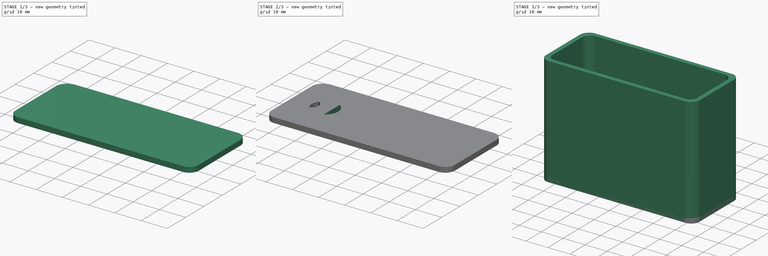
[diagram: build sequence overview — one tinted view per stage of 3, left to right]
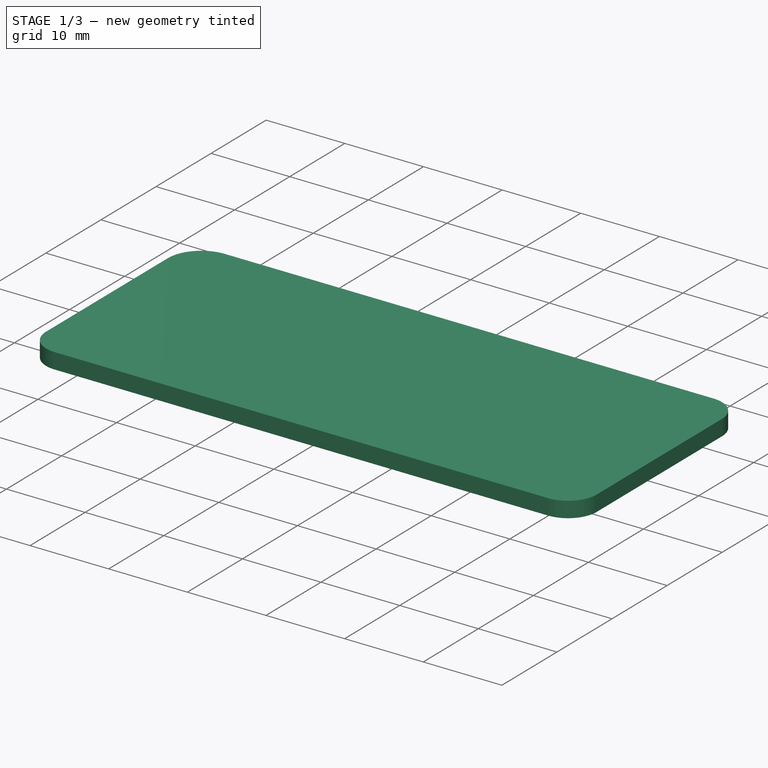
[diagram: stage 1 of 3 — iso view after this stage's code; geometry added in this stage tinted green]
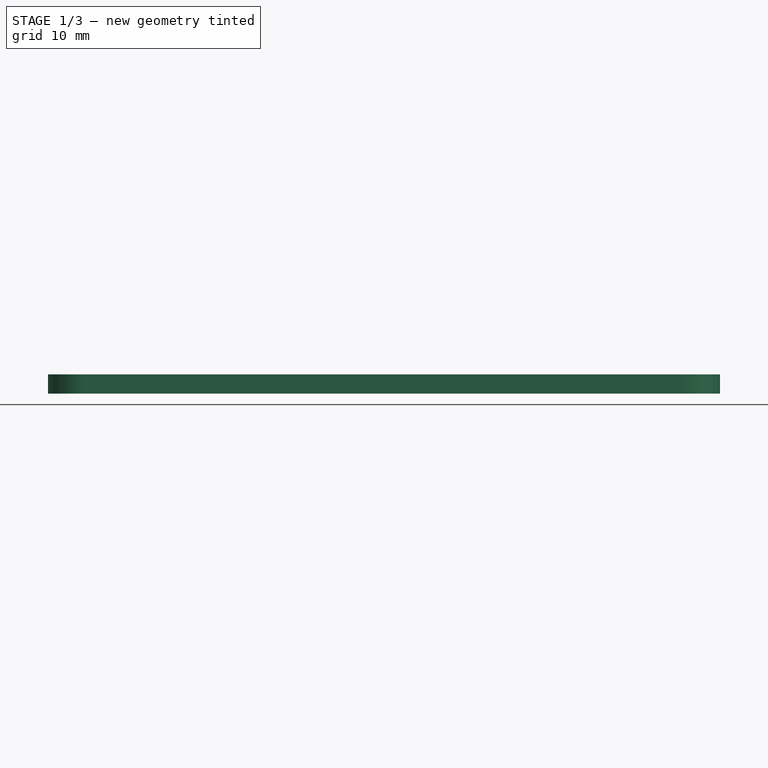
[diagram: stage 1 of 3 — front view after this stage's code; geometry added in this stage tinted green]
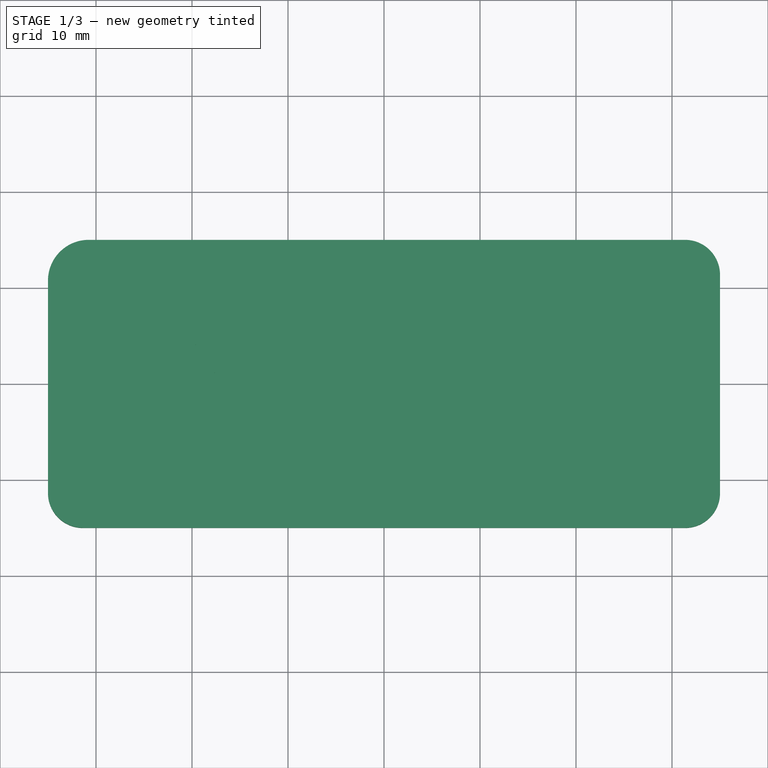
[diagram: stage 1 of 3 — top view after this stage's code; geometry added in this stage tinted green]
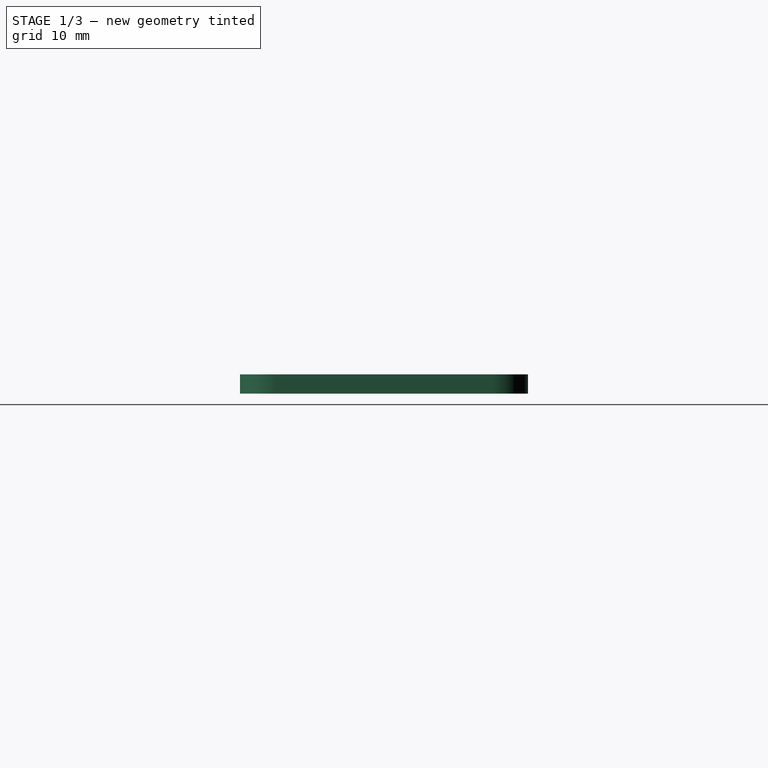
[diagram: stage 1 of 3 — right view after this stage's code; geometry added in this stage tinted green]
FCSTD DOCUMENT  (FreeCAD 0.17R13519 (Git))
Label: USB2A
License: All rights reserved
LicenseURL: http://en.wikipedia.org/wiki/All_rights_reserved
objects: Sketcher::SketchObject×7, PartDesign::Pocket×4, PartDesign::Pad×3, PartDesign::Body×3, PartDesign::LinearPattern×1
note: 25 computed .brp shape members not serialized (recipe doc carries the construction recipe); baked Part::Feature solids carry a one-line shape summary decoded from their .brp

FEATURE [PartDesign::Body] Body
  Group = -> [Sketch,Pad,Sketch001,Pocket]
  Origin = -> Origin
  Placement = pos=(0,0,10) rot=(0,0,1;0rad)
  Tip = -> Pocket
FEATURE [Sketcher::SketchObject] Sketch002
  MapMode = 5
  Support = -> [XY_Plane001]
  sketch-geometry (8):
    g0: LineSegment StartX=-30.7574 StartY=15 StartZ=0 EndX=30.7574 EndY=15 EndZ=0
    g1: LineSegment StartX=35 StartY=10.7574 StartZ=0 EndX=35 EndY=-11.3574 EndZ=0
    g2: LineSegment StartX=31.3574 StartY=-15 StartZ=0 EndX=-31.3574 EndY=-15 EndZ=0
    g3: LineSegment StartX=-35 StartY=-11.3574 StartZ=0 EndX=-35 EndY=10.7574 EndZ=0
    g4: ArcOfCircle CenterX=-30.7574 CenterY=10.7574 CenterZ=0 NormalX=0 NormalY=0 NormalZ=1 AngleXU=0 Radius=4.24264 StartAngle=1.5708 EndAngle=3.14159
    g5: ArcOfCircle CenterX=30.7574 CenterY=10.7574 CenterZ=0 NormalX=0 NormalY=0 NormalZ=1 AngleXU=0 Radius=4.24264 StartAngle=0 EndAngle=1.5708
    g6: ArcOfCircle CenterX=31.3574 CenterY=-11.3574 CenterZ=0 NormalX=0 NormalY=0 NormalZ=1 AngleXU=0 Radius=3.64264 StartAngle=4.71239 EndAngle=6.28319
    g7: ArcOfCircle CenterX=-31.3574 CenterY=-11.3574 CenterZ=0 NormalX=0 NormalY=0 NormalZ=1 AngleXU=0 Radius=3.64264 StartAngle=3.14159 EndAngle=4.71239
  constraints (14):
    c: Horizontal(g0)
    c: Horizontal(g2)
    c: Vertical(g1)
    c: Vertical(g3)
    c: Distance(g-1,g0) = 15
    c: Distance(g-1,g1) = 35
    c: Tangent(g0,g4) = 1.5708
    c: Tangent(g3,g4) = 1.5708
    c: Tangent(g0,g5) = 1.5708
    c: Tangent(g1,g5) = 1.5708
    c: Tangent(g1,g6) = 1.5708
    c: Tangent(g2,g6) = 1.5708
    c: Tangent(g2,g7) = 1.5708
    c: Tangent(g3,g7) = 1.5708
FEATURE [PartDesign::Pad] Pad001
  Length = 2
  Length2 = 100
  Profile = -> Sketch002
  Type = 0
FEATURE [PartDesign::Body] Body001
  Group = -> [Sketch002,Pad001,Sketch003,Pocket001,Sketch004,Pocket002,LinearPattern]
  Origin = -> Origin001
  Tip = -> LinearPattern
FEATURE [Sketcher::SketchObject] Sketch005
  MapMode = 5
  Support = -> [XY_Plane002]
  sketch-geometry (8):
    g0: LineSegment StartX=-30.7574 StartY=15 StartZ=0 EndX=31.3574 EndY=15 EndZ=0
    g1: LineSegment StartX=35 StartY=11.3574 StartZ=0 EndX=35 EndY=-10.7574 EndZ=0
    g2: LineSegment StartX=30.7574 StartY=-15 StartZ=0 EndX=-31.3574 EndY=-15 EndZ=0
    g3: LineSegment StartX=-35 StartY=-11.3574 StartZ=0 EndX=-35 EndY=10.7574 EndZ=0
    g4: ArcOfCircle CenterX=-30.7574 CenterY=10.7574 CenterZ=0 NormalX=0 NormalY=0 NormalZ=1 AngleXU=0 Radius=4.24264 StartAngle=1.5708 EndAngle=3.14159
    g5: ArcOfCircle CenterX=-31.3574 CenterY=-11.3574 CenterZ=0 NormalX=0 NormalY=0 NormalZ=1 AngleXU=0 Radius=3.64264 StartAngle=3.14159 EndAngle=4.71239
    g6: ArcOfCircle CenterX=30.7574 CenterY=-10.7574 CenterZ=0 NormalX=0 NormalY=0 NormalZ=1 AngleXU=0 Radius=4.24264 StartAngle=4.71239 EndAngle=6.28319
    g7: ArcOfCircle CenterX=31.3574 CenterY=11.3574 CenterZ=0 NormalX=0 NormalY=0 NormalZ=1 AngleXU=0 Radius=3.64264 StartAngle=0 EndAngle=1.5708
  constraints (14):
    c: Horizontal(g0)
    c: Horizontal(g2)
    c: Vertical(g1)
    c: Vertical(g3)
    c: Distance(g-1,g0) = 15
    c: Distance(g-1,g3) = 35
    c: Tangent(g0,g4) = 1.5708
    c: Tangent(g3,g4) = 1.5708
    c: Tangent(g2,g5) = 1.5708
    c: Tangent(g3,g5) = 1.5708
    c: Tangent(g1,g6) = 1.5708
    c: Tangent(g2,g6) = 1.5708
    c: Tangent(g0,g7) = 1.5708
    c: Tangent(g1,g7) = 1.5708
FEATURE [PartDesign::Pad] Pad002
  Length = 2
  Length2 = 100
  Profile = -> Sketch005
  Type = 0
FEATURE [Sketcher::SketchObject] Sketch006
  MapMode = 5
  Placement = pos=(0,0,2) rot=(0,0,1;0rad)
  Support = -> [Pad002]
  sketch-geometry (5):
    g0: Circle CenterX=-22.4742 CenterY=0 CenterZ=0 NormalX=0 NormalY=0 NormalZ=1 AngleXU=0 Radius=5
    g1: LineSegment StartX=-9.73742 StartY=6.04766 StartZ=0 EndX=-1.57127 EndY=6.04766 EndZ=0
    g2: LineSegment StartX=-1.57127 StartY=6.04766 StartZ=0 EndX=-1.57127 EndY=-6.56722 EndZ=0
    g3: LineSegment StartX=-1.57127 StartY=-6.56722 StartZ=0 EndX=-9.73742 EndY=-6.56722 EndZ=0
    g4: LineSegment StartX=-9.73742 StartY=-6.56722 StartZ=0 EndX=-9.73742 EndY=6.04766 EndZ=0
  constraints (10):
    c: Radius(g0) = 5
    c: PointOnObject(g0,g-1)
    c: Coincident(g1,g2)
    c: Coincident(g2,g3)
    c: Coincident(g3,g4)
    c: Coincident(g4,g1)
    c: Horizontal(g1)
    c: Horizontal(g3)
    c: Vertical(g2)
    c: Vertical(g4)
FEATURE [PartDesign::Pocket] Pocket003
  BaseFeature = -> Pad002
  Length = 5
  Length2 = 100
  Profile = -> Sketch006
  Type = 1
FEATURE [PartDesign::Body] Body002
  Group = -> [Sketch005,Pad002,Sketch006,Pocket003]
  Origin = -> Origin002
  Placement = pos=(0,0,70) rot=(0,0,1;0rad)
  Tip = -> Pocket003
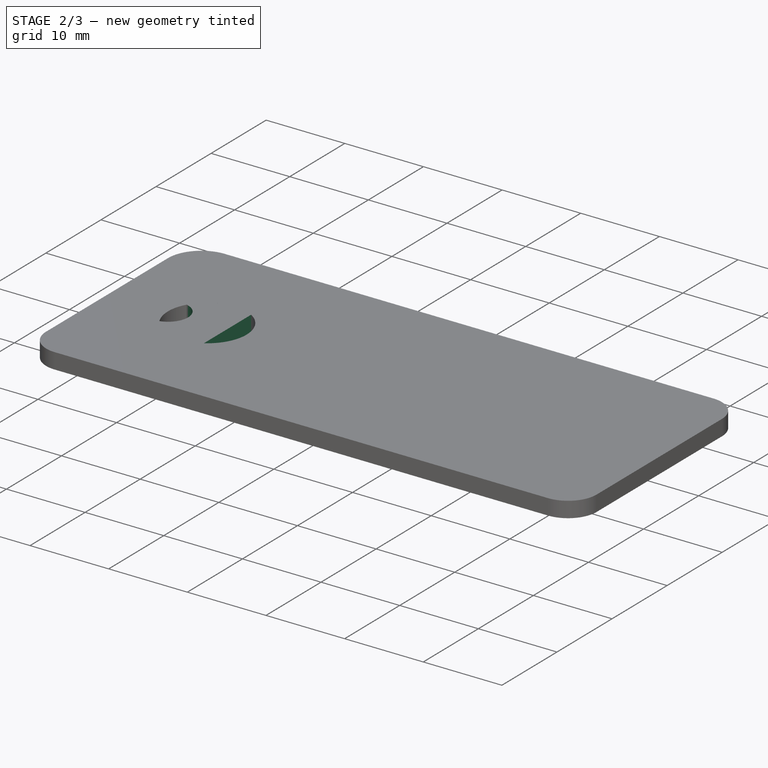
[diagram: stage 2 of 3 — iso view after this stage's code; geometry added in this stage tinted green]
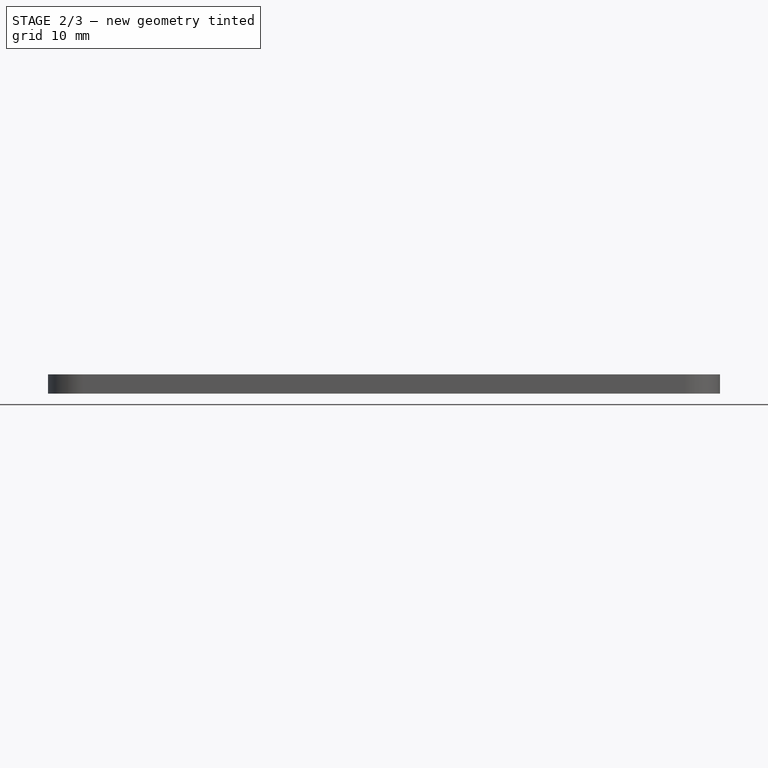
[diagram: stage 2 of 3 — front view after this stage's code; geometry added in this stage tinted green]
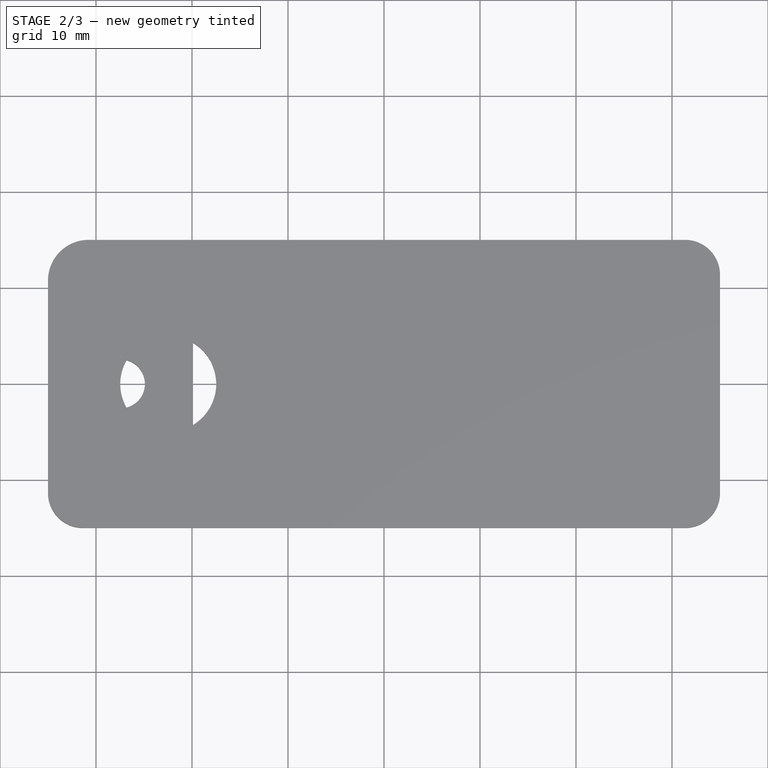
[diagram: stage 2 of 3 — top view after this stage's code; geometry added in this stage tinted green]
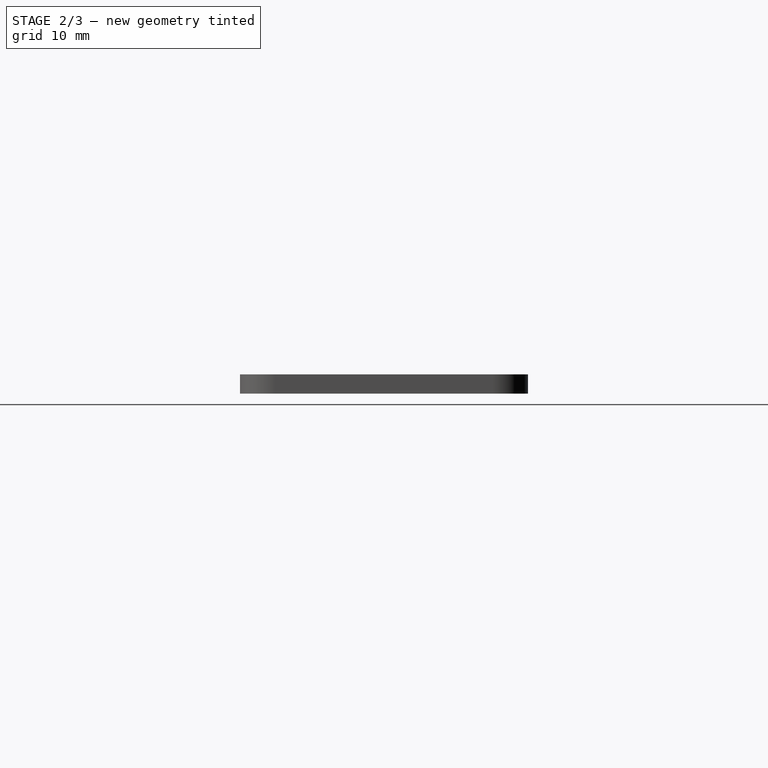
[diagram: stage 2 of 3 — right view after this stage's code; geometry added in this stage tinted green]
FEATURE [Sketcher::SketchObject] Sketch003
  ExternalGeometry = -> [Pad001]
  MapMode = 5
  Placement = pos=(0,0,2) rot=(0,0,1;0rad)
  Support = -> [Pad001]
  sketch-geometry (1):
    g0: Circle CenterX=-27.45 CenterY=0 CenterZ=0 NormalX=0 NormalY=0 NormalZ=1 AngleXU=0 Radius=2.55
  constraints (3):
    c: Radius(g0) = 2.55
    c: PointOnObject(g0,g-1)
    c: Distance(g0,g-3) = 7.55
FEATURE [PartDesign::Pocket] Pocket001
  BaseFeature = -> Pad001
  Length = 5
  Length2 = 100
  Profile = -> Sketch003
  Type = 1
FEATURE [Sketcher::SketchObject] Sketch004
  ExternalGeometry = -> [Pocket001]
  MapMode = 5
  Placement = pos=(0,0,2) rot=(0,0,1;0rad)
  Support = -> [Pocket001]
  sketch-geometry (4):
    g0: LineSegment StartX=-19.9 StartY=7 StartZ=0 EndX=-14.9 EndY=7 EndZ=0
    g1: LineSegment StartX=-14.9 StartY=7 StartZ=0 EndX=-14.9 EndY=-7 EndZ=0
    g2: LineSegment StartX=-14.9 StartY=-7 StartZ=0 EndX=-19.9 EndY=-7 EndZ=0
    g3: LineSegment StartX=-19.9 StartY=-7 StartZ=0 EndX=-19.9 EndY=7 EndZ=0
  constraints (12):
    c: Coincident(g0,g1)
    c: Coincident(g1,g2)
    c: Coincident(g2,g3)
    c: Coincident(g3,g0)
    c: Horizontal(g0)
    c: Horizontal(g2)
    c: Vertical(g1)
    c: Vertical(g3)
    c: DistanceY(g3,g3) = 14
    c: DistanceX(g0,g0) = 5
    c: Distance(g-3,g3) = 7.55
    c: DistanceY(g-1,g0) = 7
FEATURE [PartDesign::Pocket] Pocket002
  BaseFeature = -> Pocket001
  Length = 5
  Length2 = 100
  Profile = -> Sketch004
  Type = 1
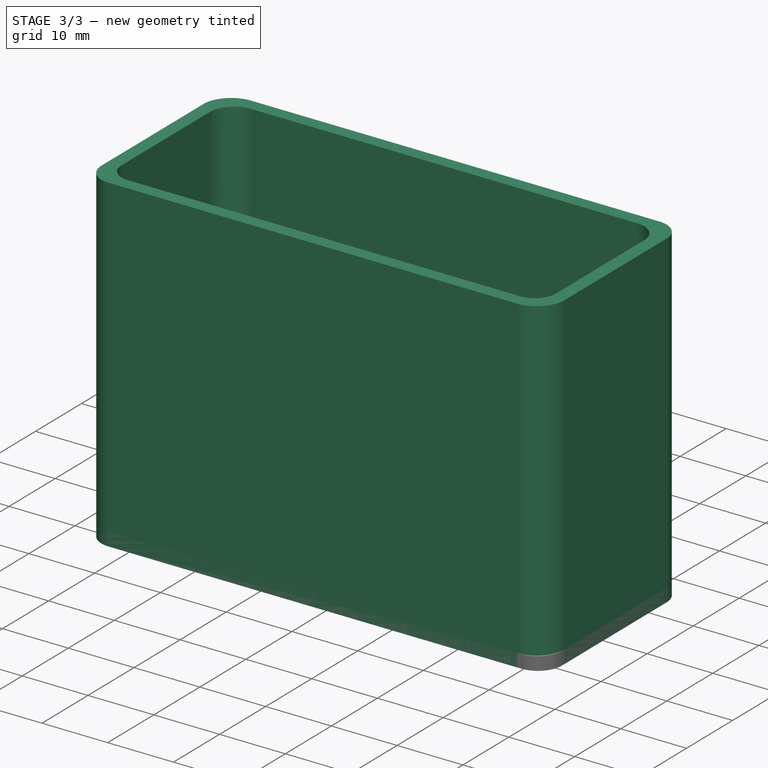
[diagram: stage 3 of 3 — iso view after this stage's code; geometry added in this stage tinted green]
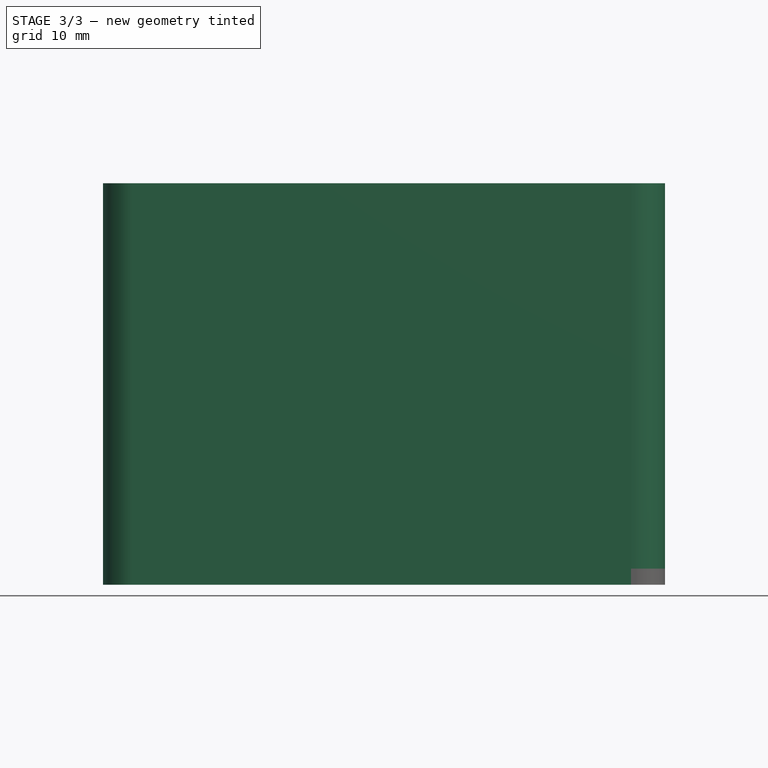
[diagram: stage 3 of 3 — front view after this stage's code; geometry added in this stage tinted green]
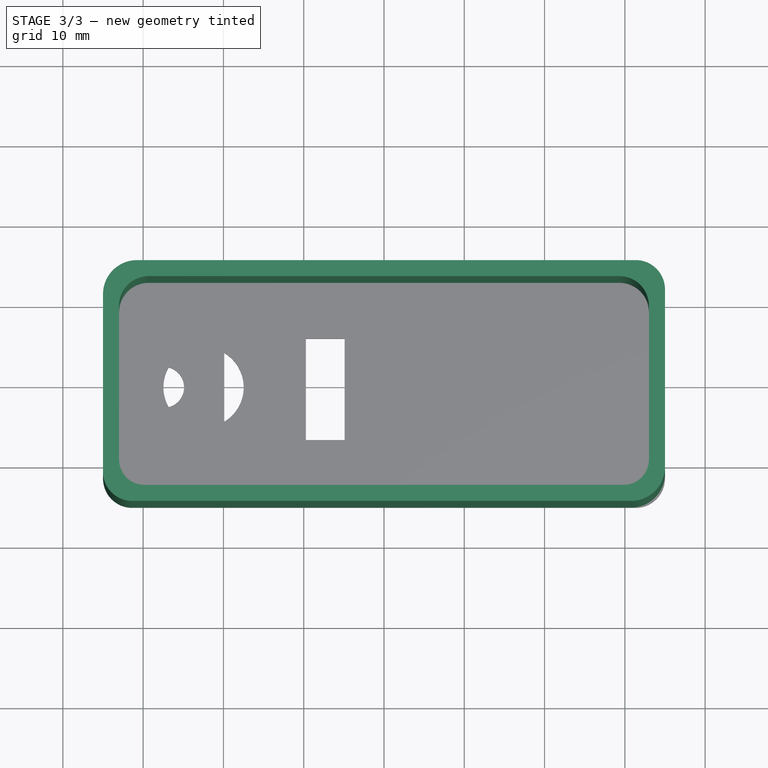
[diagram: stage 3 of 3 — top view after this stage's code; geometry added in this stage tinted green]
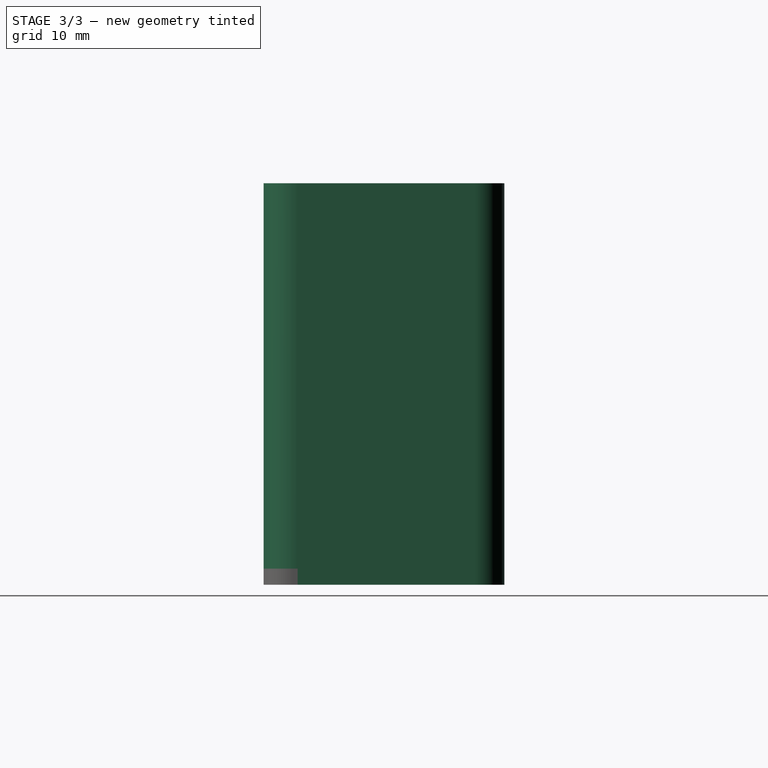
[diagram: stage 3 of 3 — right view after this stage's code; geometry added in this stage tinted green]
FEATURE [Sketcher::SketchObject] Sketch
  MapMode = 5
  Support = -> [XY_Plane]
  sketch-geometry (8):
    g0: LineSegment StartX=-30.7574 StartY=15 StartZ=0 EndX=31.3574 EndY=15 EndZ=0
    g1: LineSegment StartX=35 StartY=11.3574 StartZ=0 EndX=35 EndY=-10.7574 EndZ=0
    g2: LineSegment StartX=30.7574 StartY=-15 StartZ=0 EndX=-31.3574 EndY=-15 EndZ=0
    g3: LineSegment StartX=-35 StartY=-11.3574 StartZ=0 EndX=-35 EndY=10.7574 EndZ=0
    g4: ArcOfCircle CenterX=-30.7574 CenterY=10.7574 CenterZ=0 NormalX=0 NormalY=0 NormalZ=1 AngleXU=0 Radius=4.24264 StartAngle=1.5708 EndAngle=3.14159
    g5: ArcOfCircle CenterX=-31.3574 CenterY=-11.3574 CenterZ=0 NormalX=0 NormalY=0 NormalZ=1 AngleXU=0 Radius=3.64264 StartAngle=3.14159 EndAngle=4.71239
    g6: ArcOfCircle CenterX=30.7574 CenterY=-10.7574 CenterZ=0 NormalX=0 NormalY=0 NormalZ=1 AngleXU=0 Radius=4.24264 StartAngle=4.71239 EndAngle=6.28319
    g7: ArcOfCircle CenterX=31.3574 CenterY=11.3574 CenterZ=0 NormalX=0 NormalY=0 NormalZ=1 AngleXU=0 Radius=3.64264 StartAngle=0 EndAngle=1.5708
  constraints (14):
    c: Horizontal(g0)
    c: Horizontal(g2)
    c: Vertical(g1)
    c: Vertical(g3)
    c: Distance(g-1,g0) = 15
    c: Distance(g-1,g3) = 35
    c: Tangent(g0,g4) = 1.5708
    c: Tangent(g3,g4) = 1.5708
    c: Tangent(g2,g5) = 1.5708
    c: Tangent(g3,g5) = 1.5708
    c: Tangent(g1,g6) = 1.5708
    c: Tangent(g2,g6) = 1.5708
    c: Tangent(g0,g7) = 1.5708
    c: Tangent(g1,g7) = 1.5708
FEATURE [PartDesign::Pad] Pad
  Length = 50
  Length2 = 100
  Profile = -> Sketch
  Type = 0
FEATURE [Sketcher::SketchObject] Sketch001
  ExternalGeometry = -> [Pad]
  MapMode = 5
  Placement = pos=(0,0,50) rot=(0,0,1;0rad)
  Support = -> [Pad]
  sketch-geometry (8):
    g0: LineSegment StartX=-29.323 StartY=13 StartZ=0 EndX=29.323 EndY=13 EndZ=0
    g1: LineSegment StartX=33 StartY=9.32305 StartZ=0 EndX=33 EndY=-9.84305 EndZ=0
    g2: LineSegment StartX=29.843 StartY=-13 StartZ=0 EndX=-29.843 EndY=-13 EndZ=0
    g3: LineSegment StartX=-33 StartY=-9.84305 StartZ=0 EndX=-33 EndY=9.32305 EndZ=0
    g4: ArcOfCircle CenterX=29.323 CenterY=9.32305 CenterZ=0 NormalX=0 NormalY=0 NormalZ=1 AngleXU=0 Radius=3.67695 StartAngle=0 EndAngle=1.5708
    g5: ArcOfCircle CenterX=-29.323 CenterY=9.32305 CenterZ=0 NormalX=0 NormalY=0 NormalZ=1 AngleXU=0 Radius=3.67695 StartAngle=1.5708 EndAngle=3.14159
    g6: ArcOfCircle CenterX=-29.843 CenterY=-9.84305 CenterZ=0 NormalX=0 NormalY=0 NormalZ=1 AngleXU=0 Radius=3.15695 StartAngle=3.14159 EndAngle=4.71239
    g7: ArcOfCircle CenterX=29.843 CenterY=-9.84305 CenterZ=0 NormalX=0 NormalY=0 NormalZ=1 AngleXU=0 Radius=3.15695 StartAngle=4.71239 EndAngle=6.28319
  constraints (14):
    c: Horizontal(g0)
    c: Horizontal(g2)
    c: Vertical(g1)
    c: Vertical(g3)
    c: Distance(g-1,g2) = 13
    c: Distance(g-1,g1) = 33
    c: Tangent(g0,g4) = 1.5708
    c: Tangent(g1,g4) = 1.5708
    c: Tangent(g0,g5) = 1.5708
    c: Tangent(g3,g5) = 1.5708
    c: Tangent(g2,g6) = 1.5708
    c: Tangent(g3,g6) = 1.5708
    c: Tangent(g1,g7) = 1.5708
    c: Tangent(g2,g7) = 1.5708
FEATURE [PartDesign::Pocket] Pocket
  BaseFeature = -> Pad
  Length = 5
  Length2 = 100
  Profile = -> Sketch001
  Type = 1
FEATURE [PartDesign::LinearPattern] LinearPattern
  BaseFeature = -> Pocket002
  Direction = -> Sketch004 [H_Axis]
  Length = 40
  Occurrences = 5
  Originals = -> [Pocket002]
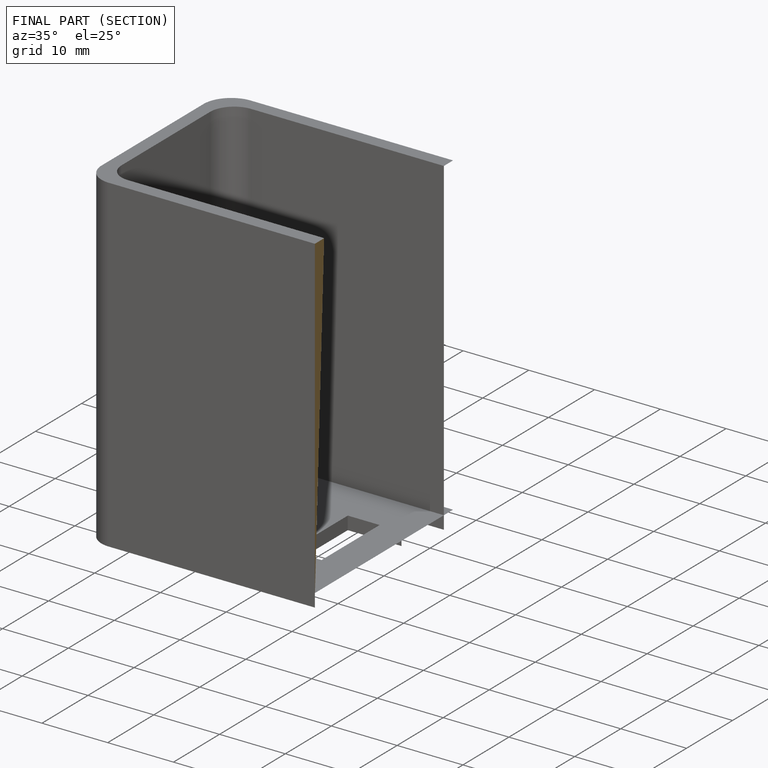
[diagram: finished part — half-section view (interior)]
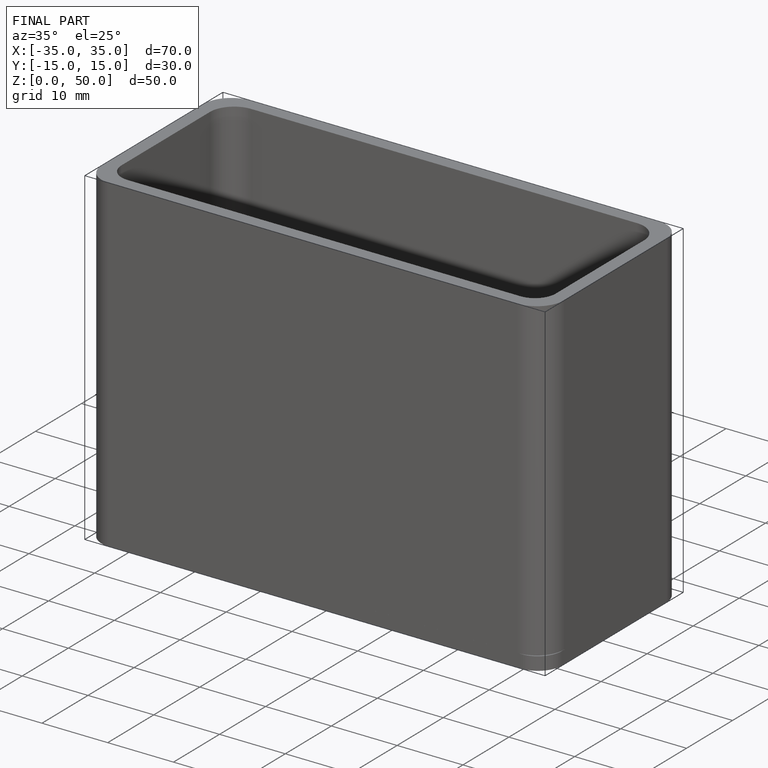
[diagram: finished part — iso view with bounding-box wireframe]
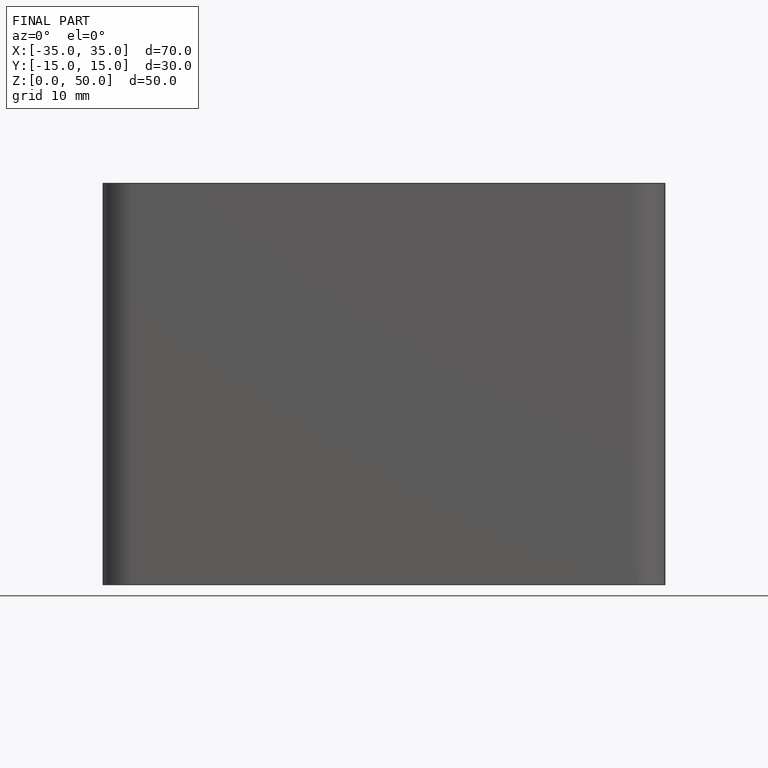
[diagram: finished part — front view with bounding-box wireframe]
